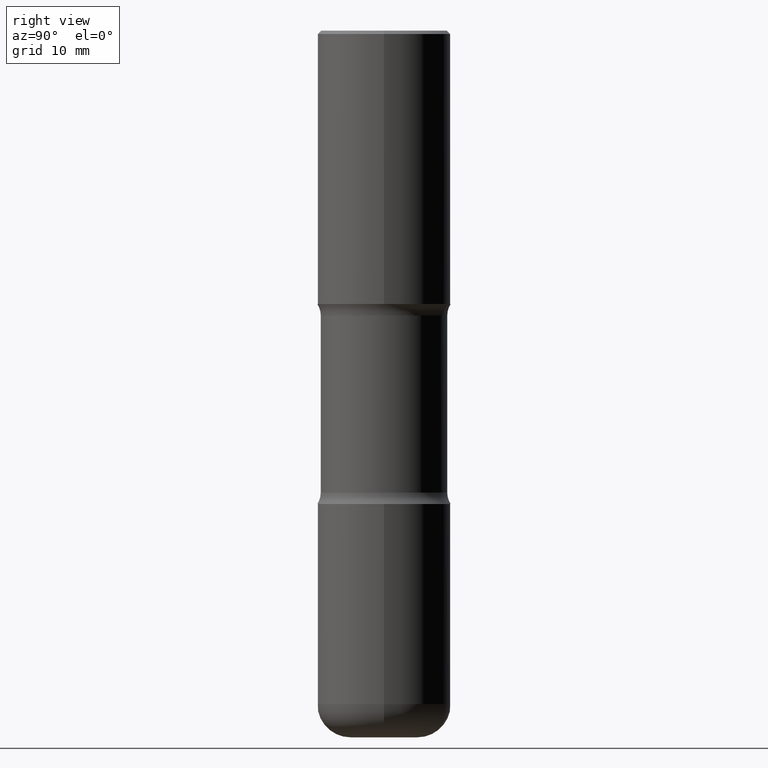
[diagram: clean part render]
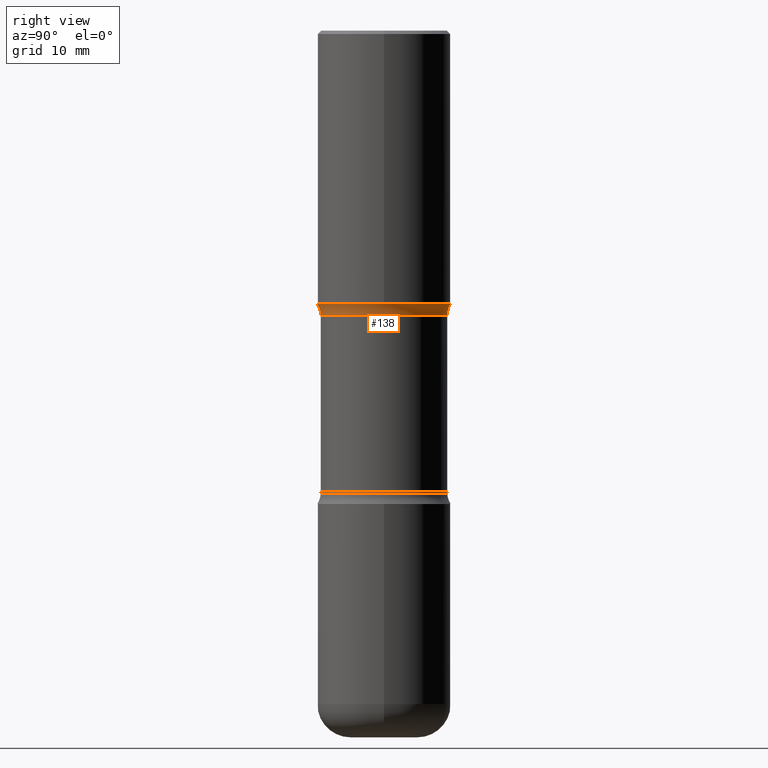
[diagram: same view with one face highlighted and labeled with its STEP entity id]
A machine part, right view. The second image highlights one B-rep face of the part: STEP entity #138.
In plain terms, the highlighted toroidal blend (fillet) surface has major radius 12.6619 mm and minor (blend) radius 3.175 mm.
Its self-contained STEP definition (entity closure, byte-faithful):
#2 = DIRECTION ( 'NONE',  ( 6.860497997771532351E-15, 1.000000000000000000, 0.000000000000000000 ) ) ;
#27 = DIRECTION ( 'NONE',  ( 2.497382066111305685E-29, -3.417138595909611452E-15, -1.000000000000000000 ) ) ;
#43 = DIRECTION ( 'NONE',  ( 6.982962677686265922E-15, 1.000000000000000000, -3.469453890861391629E-15 ) ) ;
#44 = CARTESIAN_POINT ( 'NONE',  ( 2.608136560115861621E-15, 0.3734999999999941700, -1.682231930840100809 ) ) ;
#48 = DIRECTION ( 'NONE',  ( 2.497382066111305685E-29, -3.417138595909611452E-15, -1.000000000000000000 ) ) ;
#54 = ORIENTED_EDGE ( 'NONE', *, *, #195, .F. ) ;
#85 = FACE_OUTER_BOUND ( 'NONE', #366, .T. ) ;
#93 = VERTEX_POINT ( 'NONE', #44 ) ;
#138 = ADVANCED_FACE ( 'NONE', ( #85 ), #186, .F. ) ;
#170 = CARTESIAN_POINT ( 'NONE',  ( 3.481006894826646143E-15, 0.4984999999999942810, -1.682231930840101253 ) ) ;
#177 = CARTESIAN_POINT ( 'NONE',  ( -2.700978061722616937E-15, -0.3937000000000062117, -1.614099999999998758 ) ) ;
#180 = AXIS2_PLACEMENT_3D ( 'NONE', #170, #470, #333 ) ;
#186 = TOROIDAL_SURFACE ( 'NONE', #207, 0.4985000000000002762, 0.1250000000000001665 ) ;
#192 = ORIENTED_EDGE ( 'NONE', *, *, #527, .T. ) ;
#195 = EDGE_CURVE ( 'NONE', #555, #245, #410, .T. ) ;
#207 = AXIS2_PLACEMENT_3D ( 'NONE', #523, #560, #435 ) ;
#219 = EDGE_CURVE ( 'NONE', #312, #245, #559, .T. ) ;
#220 = CARTESIAN_POINT ( 'NONE',  ( -3.419958251889069808E-15, -0.4985000000000063269, -1.682231930840097922 ) ) ;
#237 = ORIENTED_EDGE ( 'NONE', *, *, #219, .T. ) ;
#245 = VERTEX_POINT ( 'NONE', #177 ) ;
#265 = DIRECTION ( 'NONE',  ( 1.000000000000000000, -6.860497997771530774E-15, 4.841709315645876741E-29 ) ) ;
#284 = CARTESIAN_POINT ( 'NONE',  ( -2.631687031945121663E-15, -0.3735000000000060494, -1.682231930840098144 ) ) ;
#302 = CARTESIAN_POINT ( 'NONE',  ( 3.885916448764630888E-29, -5.723406242705518712E-15, -1.614100000000000090 ) ) ;
#309 = CARTESIAN_POINT ( 'NONE',  ( 2.749192406205125815E-15, 0.3936999999999947764, -1.614100000000001423 ) ) ;
#312 = VERTEX_POINT ( 'NONE', #309 ) ;
#322 = DIRECTION ( 'NONE',  ( 6.982962677686265922E-15, 1.000000000000000000, -3.657092360996335267E-15 ) ) ;
#333 = DIRECTION ( 'NONE',  ( -6.982962677686265133E-15, -1.000000000000000000, 0.000000000000000000 ) ) ;
#363 = AXIS2_PLACEMENT_3D ( 'NONE', #220, #265, #2 ) ;
#366 = EDGE_LOOP ( 'NONE', ( #54, #465, #192, #237 ) ) ;
#371 = CARTESIAN_POINT ( 'NONE',  ( 4.056067910974230799E-29, -5.956222493193065901E-15, -1.682231930840099476 ) ) ;
#384 = AXIS2_PLACEMENT_3D ( 'NONE', #302, #48, #43 ) ;
#410 = CIRCLE ( 'NONE', #363, 0.1250000000000001665 ) ;
#435 = DIRECTION ( 'NONE',  ( 6.982962677686265922E-15, 1.000000000000000000, -3.417138595909611452E-15 ) ) ;
#463 = AXIS2_PLACEMENT_3D ( 'NONE', #371, #27, #322 ) ;
#465 = ORIENTED_EDGE ( 'NONE', *, *, #549, .F. ) ;
#470 = DIRECTION ( 'NONE',  ( -1.000000000000000000, 6.982962677686265922E-15, -4.883557194083112340E-29 ) ) ;
#478 = CIRCLE ( 'NONE', #463, 0.3735000000000001097 ) ;
#521 = CIRCLE ( 'NONE', #180, 0.1250000000000001665 ) ;
#523 = CARTESIAN_POINT ( 'NONE',  ( 4.018463748733707681E-29, -6.010073793817493129E-15, -1.682231930840099476 ) ) ;
#527 = EDGE_CURVE ( 'NONE', #93, #312, #521, .T. ) ;
#549 = EDGE_CURVE ( 'NONE', #93, #555, #478, .T. ) ;
#555 = VERTEX_POINT ( 'NONE', #284 ) ;
#559 = CIRCLE ( 'NONE', #384, 0.3937000000000004940 ) ;
#560 = DIRECTION ( 'NONE',  ( 2.497382066111305685E-29, -3.417138595909611452E-15, -1.000000000000000000 ) ) ;